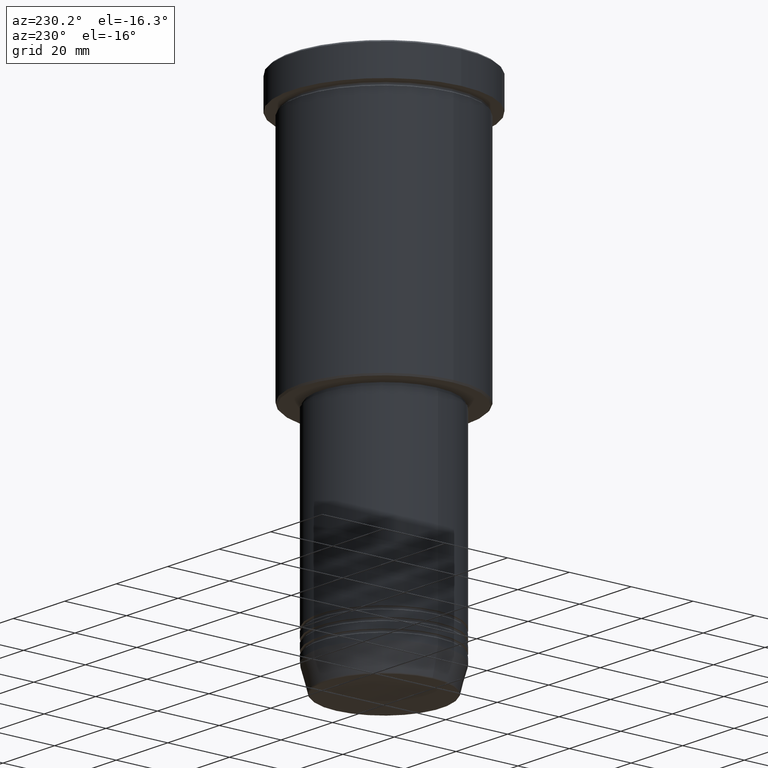
[diagram: clean part render]
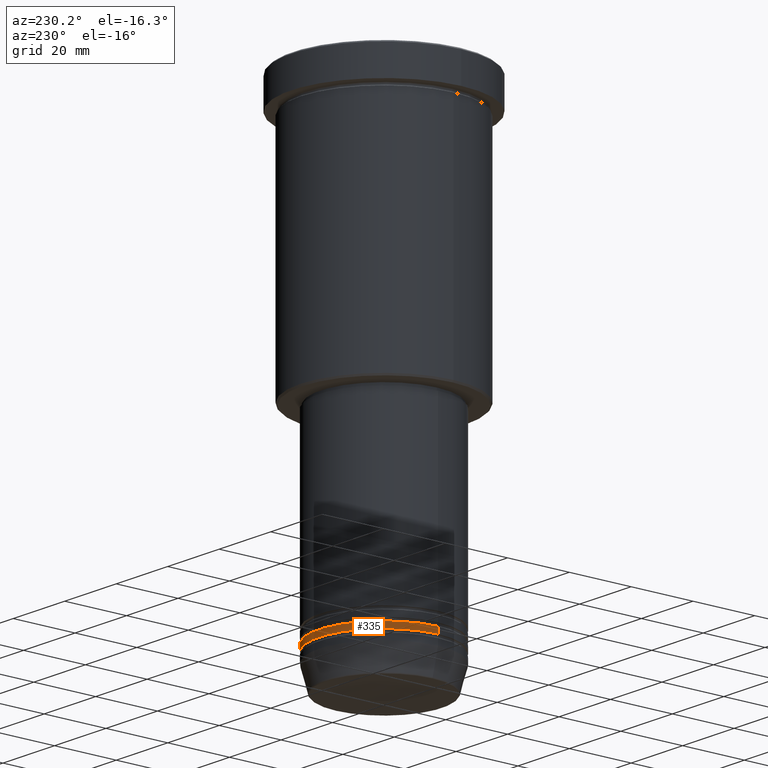
[diagram: same view with one face highlighted and labeled with its STEP entity id]
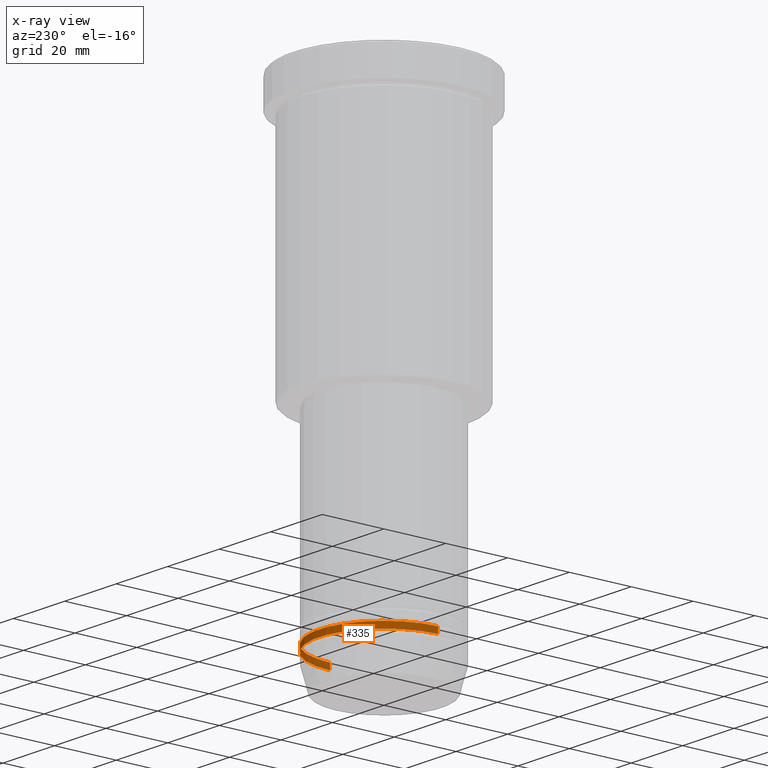
[diagram: x-ray of the same camera — body ghosted, the highlighted face saturated]
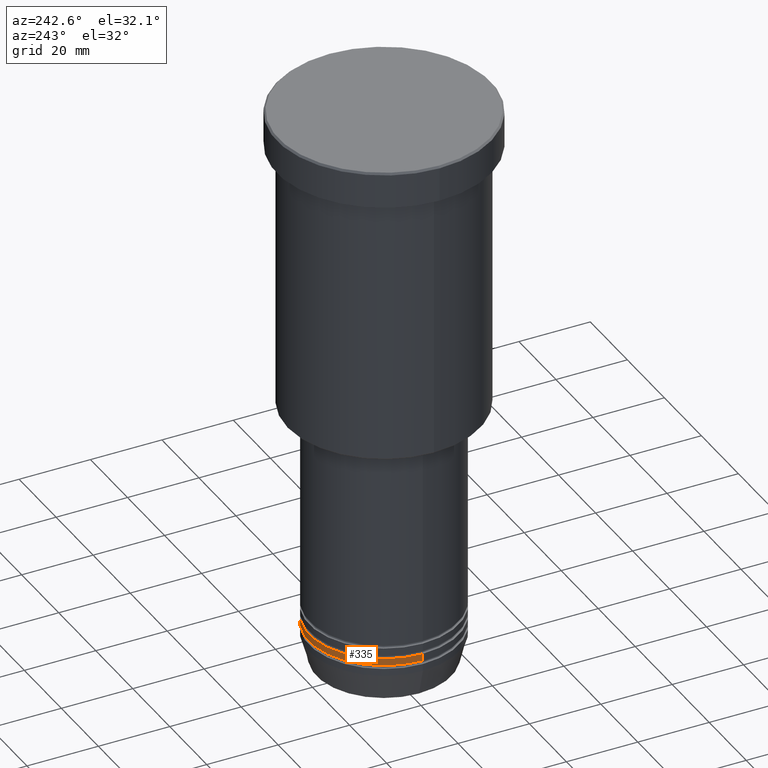
[diagram: same view with one face highlighted and labeled with its STEP entity id]
A machine part, auxiliary view. The second image highlights one B-rep face of the part: STEP entity #335.
The next image is the same camera in x-ray: the body ghosted, the highlighted face saturated — about 12% of this face is hidden behind the body in this view.
A second angle (auxiliary view) of the same face is appended — the face is thin or edge-on in the first view.
In plain terms, the highlighted cylindrical surface (partial cylindrical patch) has radius 21 mm, axis along (-0, -0, 1).
Its self-contained STEP definition (entity closure, byte-faithful):
#59 = ORIENTED_EDGE ( 'NONE', *, *, #866, .F. ) ;
#78 = VECTOR ( 'NONE', #91, 1000.000000000000000 ) ;
#89 = EDGE_CURVE ( 'NONE', #221, #1127, #1102, .T. ) ;
#91 = DIRECTION ( 'NONE',  ( -0.000000000000000000, -0.000000000000000000, 1.000000000000000000 ) ) ;
#109 = EDGE_CURVE ( 'NONE', #674, #260, #994, .T. ) ;
#128 = CARTESIAN_POINT ( 'NONE',  ( -21.00000000000000000, 2.571758278209441661E-15, -147.9999999999999716 ) ) ;
#135 = FACE_OUTER_BOUND ( 'NONE', #439, .T. ) ;
#205 = VECTOR ( 'NONE', #921, 1000.000000000000000 ) ;
#221 = VERTEX_POINT ( 'NONE', #408 ) ;
#260 = VERTEX_POINT ( 'NONE', #128 ) ;
#272 = CARTESIAN_POINT ( 'NONE',  ( -21.00000000000000000, 2.571758278209441661E-15, 0.000000000000000000 ) ) ;
#282 = CARTESIAN_POINT ( 'NONE',  ( 21.00000000000000000, 0.000000000000000000, 0.000000000000000000 ) ) ;
#296 = CARTESIAN_POINT ( 'NONE',  ( 21.00000000000000000, 0.000000000000000000, -147.9999999999999716 ) ) ;
#335 = ADVANCED_FACE ( 'NONE', ( #135 ), #413, .T. ) ;
#404 = ORIENTED_EDGE ( 'NONE', *, *, #89, .F. ) ;
#408 = CARTESIAN_POINT ( 'NONE',  ( 21.00000000000000000, 0.000000000000000000, -149.9999999999999716 ) ) ;
#413 = CYLINDRICAL_SURFACE ( 'NONE', #1144, 21.00000000000000000 ) ;
#439 = EDGE_LOOP ( 'NONE', ( #522, #692, #59, #404 ) ) ;
#440 = CIRCLE ( 'NONE', #1044, 21.00000000000000000 ) ;
#479 = EDGE_CURVE ( 'NONE', #221, #674, #590, .T. ) ;
#495 = CARTESIAN_POINT ( 'NONE',  ( 0.000000000000000000, 0.000000000000000000, -147.9999999999999716 ) ) ;
#502 = DIRECTION ( 'NONE',  ( -0.000000000000000000, -0.000000000000000000, 1.000000000000000000 ) ) ;
#505 = CARTESIAN_POINT ( 'NONE',  ( 0.000000000000000000, 0.000000000000000000, 0.000000000000000000 ) ) ;
#522 = ORIENTED_EDGE ( 'NONE', *, *, #479, .T. ) ;
#590 = CIRCLE ( 'NONE', #1028, 21.00000000000000000 ) ;
#674 = VERTEX_POINT ( 'NONE', #1016 ) ;
#692 = ORIENTED_EDGE ( 'NONE', *, *, #109, .T. ) ;
#718 = DIRECTION ( 'NONE',  ( -0.000000000000000000, -0.000000000000000000, 1.000000000000000000 ) ) ;
#806 = DIRECTION ( 'NONE',  ( -0.000000000000000000, -0.000000000000000000, 1.000000000000000000 ) ) ;
#866 = EDGE_CURVE ( 'NONE', #1127, #260, #440, .T. ) ;
#882 = DIRECTION ( 'NONE',  ( 1.000000000000000000, 0.000000000000000000, 0.000000000000000000 ) ) ;
#921 = DIRECTION ( 'NONE',  ( -0.000000000000000000, -0.000000000000000000, 1.000000000000000000 ) ) ;
#964 = DIRECTION ( 'NONE',  ( 1.000000000000000000, 0.000000000000000000, 0.000000000000000000 ) ) ;
#994 = LINE ( 'NONE', #272, #205 ) ;
#1016 = CARTESIAN_POINT ( 'NONE',  ( -21.00000000000000000, 2.571758278209441661E-15, -149.9999999999999716 ) ) ;
#1028 = AXIS2_PLACEMENT_3D ( 'NONE', #1086, #718, #1095 ) ;
#1044 = AXIS2_PLACEMENT_3D ( 'NONE', #495, #502, #964 ) ;
#1086 = CARTESIAN_POINT ( 'NONE',  ( 0.000000000000000000, 0.000000000000000000, -149.9999999999999716 ) ) ;
#1095 = DIRECTION ( 'NONE',  ( 1.000000000000000000, 0.000000000000000000, 0.000000000000000000 ) ) ;
#1102 = LINE ( 'NONE', #282, #78 ) ;
#1127 = VERTEX_POINT ( 'NONE', #296 ) ;
#1144 = AXIS2_PLACEMENT_3D ( 'NONE', #505, #806, #882 ) ;